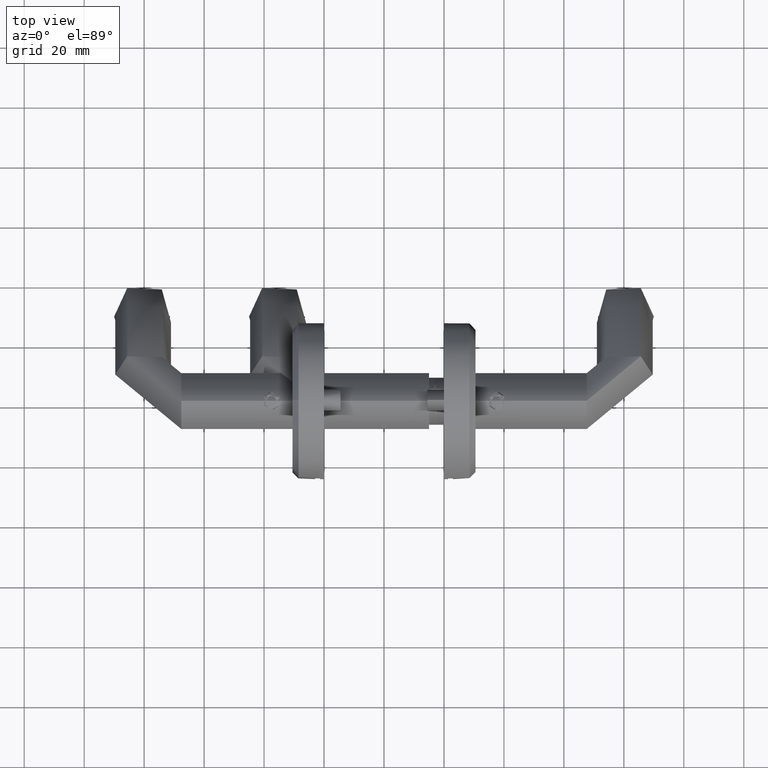
[diagram: clean part render]
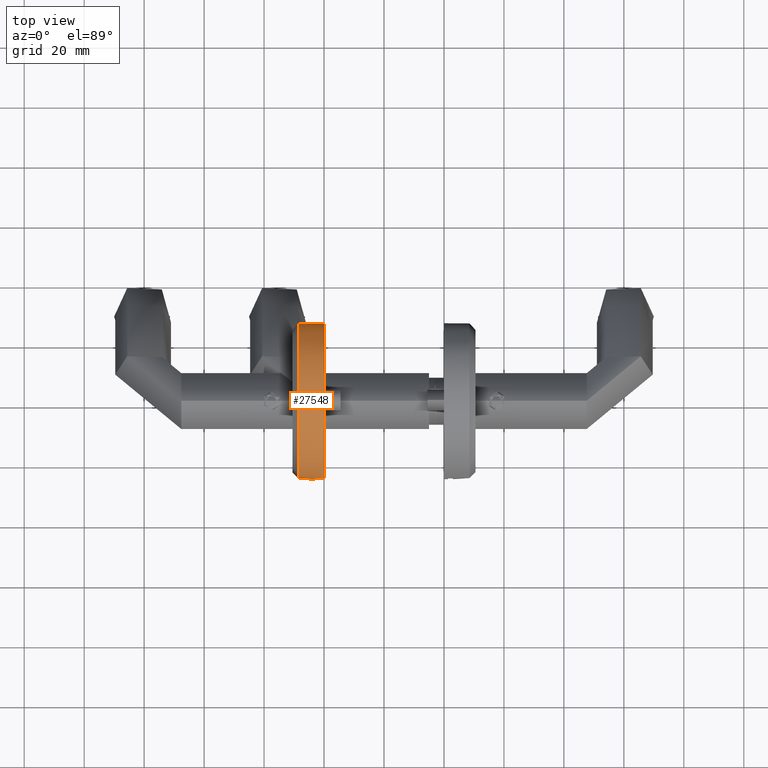
[diagram: same view with one face highlighted and labeled with its STEP entity id]
A machine part, top view. The second image highlights one B-rep face of the part: STEP entity #27548.
In plain terms, the highlighted cylindrical surface (bore or boss wall) has radius 26 mm, axis along (1, 0, -0).
Its self-contained STEP definition (entity closure, byte-faithful):
#1547 = CYLINDRICAL_SURFACE ( 'NONE', #28435, 26.00000000000000400 ) ;
#1957 = CARTESIAN_POINT ( 'NONE',  ( 0.0000000000000000000, 0.0000000000000000000, 2.999999999999998200 ) ) ;
#2344 = VERTEX_POINT ( 'NONE', #11826 ) ;
#2607 = EDGE_CURVE ( 'NONE', #22024, #10953, #8855, .T. ) ;
#2952 = EDGE_LOOP ( 'NONE', ( #7553 ) ) ;
#3018 = DIRECTION ( 'NONE',  ( 0.0000000000000000000, 0.0000000000000000000, 1.000000000000000000 ) ) ;
#3914 = ORIENTED_EDGE ( 'NONE', *, *, #37010, .T. ) ;
#4815 = EDGE_CURVE ( 'NONE', #2344, #2344, #19732, .T. ) ;
#5532 = AXIS2_PLACEMENT_3D ( 'NONE', #28967, #3018, #26061 ) ;
#5567 = DIRECTION ( 'NONE',  ( -0.0000000000000000000, -0.0000000000000000000, -1.000000000000000000 ) ) ;
#5685 = DIRECTION ( 'NONE',  ( -1.000000000000000000, 0.0000000000000000000, 0.0000000000000000000 ) ) ;
#6870 = CARTESIAN_POINT ( 'NONE',  ( 3.899999999999998600, -25.70583591327074300, 10.50000000000000000 ) ) ;
#7553 = ORIENTED_EDGE ( 'NONE', *, *, #4815, .T. ) ;
#7601 = DIRECTION ( 'NONE',  ( 0.0000000000000000000, 0.0000000000000000000, 1.000000000000000000 ) ) ;
#8843 = CARTESIAN_POINT ( 'NONE',  ( 3.899999999999999900, -25.70583591327074300, 2.999999999999998200 ) ) ;
#8855 = LINE ( 'NONE', #6870, #36199 ) ;
#9310 = EDGE_LOOP ( 'NONE', ( #3914, #18409, #28612, #25873 ) ) ;
#9707 = EDGE_CURVE ( 'NONE', #10953, #21222, #11087, .T. ) ;
#10953 = VERTEX_POINT ( 'NONE', #19571 ) ;
#11087 = CIRCLE ( 'NONE', #5532, 26.00000000000000400 ) ;
#11493 = FACE_OUTER_BOUND ( 'NONE', #2952, .T. ) ;
#11826 = CARTESIAN_POINT ( 'NONE',  ( 26.00000000000000400, 0.0000000000000000000, 8.500000000000000000 ) ) ;
#14226 = CARTESIAN_POINT ( 'NONE',  ( 0.0000000000000000000, 0.0000000000000000000, 10.50000000000000000 ) ) ;
#14662 = EDGE_CURVE ( 'NONE', #17039, #22024, #27073, .T. ) ;
#16733 = LINE ( 'NONE', #27646, #22529 ) ;
#17039 = VERTEX_POINT ( 'NONE', #34907 ) ;
#17294 = FACE_OUTER_BOUND ( 'NONE', #9310, .T. ) ;
#18163 = DIRECTION ( 'NONE',  ( -0.0000000000000000000, -0.0000000000000000000, -1.000000000000000000 ) ) ;
#18409 = ORIENTED_EDGE ( 'NONE', *, *, #14662, .T. ) ;
#19571 = CARTESIAN_POINT ( 'NONE',  ( 3.900000000000000400, -25.70583591327074700, -1.734723475976807100E-015 ) ) ;
#19732 = CIRCLE ( 'NONE', #24180, 26.00000000000000400 ) ;
#20325 = AXIS2_PLACEMENT_3D ( 'NONE', #1957, #28038, #22277 ) ;
#21222 = VERTEX_POINT ( 'NONE', #25178 ) ;
#22024 = VERTEX_POINT ( 'NONE', #8843 ) ;
#22277 = DIRECTION ( 'NONE',  ( 1.000000000000000000, 0.0000000000000000000, 0.0000000000000000000 ) ) ;
#22529 = VECTOR ( 'NONE', #7601, 1000.000000000000000 ) ;
#22844 = DIRECTION ( 'NONE',  ( 1.000000000000000000, 0.0000000000000000000, 0.0000000000000000000 ) ) ;
#24180 = AXIS2_PLACEMENT_3D ( 'NONE', #36880, #5567, #22844 ) ;
#25178 = CARTESIAN_POINT ( 'NONE',  ( -3.899999999999999900, -25.70583591327074700, -1.283785409773493500E-015 ) ) ;
#25576 = DIRECTION ( 'NONE',  ( -0.0000000000000000000, -0.0000000000000000000, -1.000000000000000000 ) ) ;
#25873 = ORIENTED_EDGE ( 'NONE', *, *, #9707, .T. ) ;
#26061 = DIRECTION ( 'NONE',  ( 1.000000000000000000, 0.0000000000000000000, 0.0000000000000000000 ) ) ;
#27073 = CIRCLE ( 'NONE', #20325, 26.00000000000000400 ) ;
#27548 = ADVANCED_FACE ( 'NONE', ( #11493, #17294 ), #1547, .T. ) ;
#27646 = CARTESIAN_POINT ( 'NONE',  ( -3.899999999999999900, -25.70583591327074300, 10.50000000000000000 ) ) ;
#28038 = DIRECTION ( 'NONE',  ( 0.0000000000000000000, 0.0000000000000000000, 1.000000000000000000 ) ) ;
#28435 = AXIS2_PLACEMENT_3D ( 'NONE', #14226, #25576, #5685 ) ;
#28612 = ORIENTED_EDGE ( 'NONE', *, *, #2607, .T. ) ;
#28967 = CARTESIAN_POINT ( 'NONE',  ( 0.0000000000000000000, 0.0000000000000000000, 0.0000000000000000000 ) ) ;
#34907 = CARTESIAN_POINT ( 'NONE',  ( -3.899999999999999900, -25.70583591327074300, 2.999999999999998200 ) ) ;
#36199 = VECTOR ( 'NONE', #18163, 1000.000000000000000 ) ;
#36880 = CARTESIAN_POINT ( 'NONE',  ( 0.0000000000000000000, 0.0000000000000000000, 8.500000000000000000 ) ) ;
#37010 = EDGE_CURVE ( 'NONE', #21222, #17039, #16733, .T. ) ;